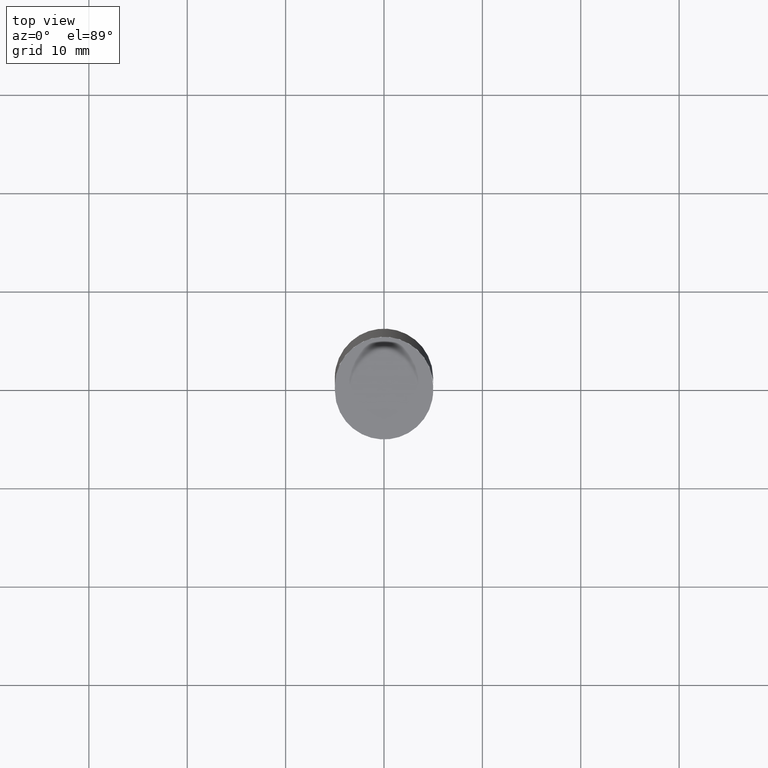
[diagram: clean part render]
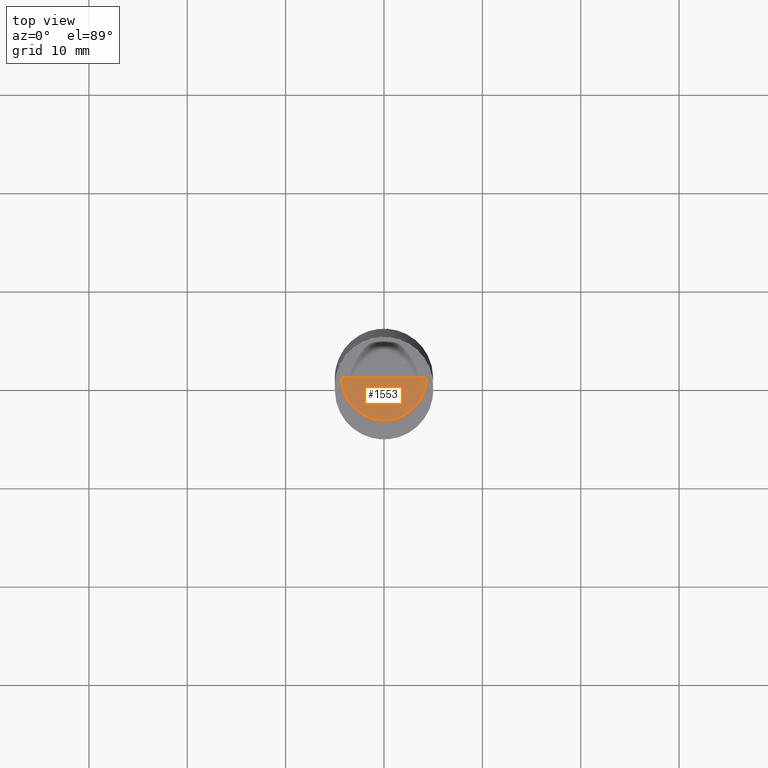
[diagram: same view with one face highlighted and labeled with its STEP entity id]
A machine part, top view. The second image highlights one B-rep face of the part: STEP entity #1553.
In plain terms, the highlighted face is a freeform B-spline surface patch.
Its self-contained STEP definition (entity closure, byte-faithful):
#1283=CARTESIAN_POINT('',(4.3,0.0,48.0));
#1287=CARTESIAN_POINT('',(-4.3,0.0,48.0));
#1288=CARTESIAN_POINT('',(0.0,0.0,48.0));
#1292=CARTESIAN_POINT('',(-4.3,-4.3,48.0));
#1293=CARTESIAN_POINT('',(0.0,-4.3,48.0));
#1294=CARTESIAN_POINT('',(4.3,-4.3,48.0));
#1538=(
BOUNDED_SURFACE()
B_SPLINE_SURFACE(1,2,(
(#1287,#1292,#1293,#1294,#1283),
(#1288,#1288,#1288,#1288,#1288)
), .UNSPECIFIED.,.F.,.F.,.F.)
B_SPLINE_SURFACE_WITH_KNOTS((2,2),(3,2,3),(
0.0,1.0),(
0.0,0.5,1.0), .UNSPECIFIED.)
GEOMETRIC_REPRESENTATION_ITEM()
RATIONAL_B_SPLINE_SURFACE(((1.0,0.707106781187,1.0,0.707106781187,1.0),
(1.0,0.707106781187,1.0,0.707106781187,1.0)
))
REPRESENTATION_ITEM('')
SURFACE()
);
#1539=(
BOUNDED_CURVE()
B_SPLINE_CURVE(2,(#1283,#1294,#1293,#1292,#1287),.UNSPECIFIED.,.F.,.F.)
B_SPLINE_CURVE_WITH_KNOTS((3,2,3),
(0.0,0.5,1.0),.UNSPECIFIED.)
CURVE()
GEOMETRIC_REPRESENTATION_ITEM()
RATIONAL_B_SPLINE_CURVE((1.0,0.707106781187,1.0,0.707106781187,1.0))
REPRESENTATION_ITEM('')
);
#1540=(
BOUNDED_CURVE()
B_SPLINE_CURVE(1,(#1287,#1288),.UNSPECIFIED.,.F.,.F.)
B_SPLINE_CURVE_WITH_KNOTS((2,2),
(0.0,1.0),.UNSPECIFIED.)
CURVE()
GEOMETRIC_REPRESENTATION_ITEM()
RATIONAL_B_SPLINE_CURVE((1.0,1.0))
REPRESENTATION_ITEM('')
);
#1541=(
BOUNDED_CURVE()
B_SPLINE_CURVE(1,(#1288,#1283),.UNSPECIFIED.,.F.,.F.)
B_SPLINE_CURVE_WITH_KNOTS((2,2),
(0.0,1.0),.UNSPECIFIED.)
CURVE()
GEOMETRIC_REPRESENTATION_ITEM()
RATIONAL_B_SPLINE_CURVE((1.0,1.0))
REPRESENTATION_ITEM('')
);
#1542=VERTEX_POINT('',#1283);
#1543=VERTEX_POINT('',#1287);
#1544=VERTEX_POINT('',#1288);
#1545=EDGE_CURVE('',#1542,#1543,#1539,.T.);
#1546=EDGE_CURVE('',#1543,#1544,#1540,.T.);
#1547=EDGE_CURVE('',#1544,#1542,#1541,.T.);
#1548=ORIENTED_EDGE('',*,*,#1545,.T.);
#1549=ORIENTED_EDGE('',*,*,#1546,.T.);
#1550=ORIENTED_EDGE('',*,*,#1547,.T.);
#1551=EDGE_LOOP('',(#1548,#1549,#1550));
#1552=FACE_OUTER_BOUND('',#1551,.T.);
#1553=ADVANCED_FACE('',(#1552),#1538,.T.);